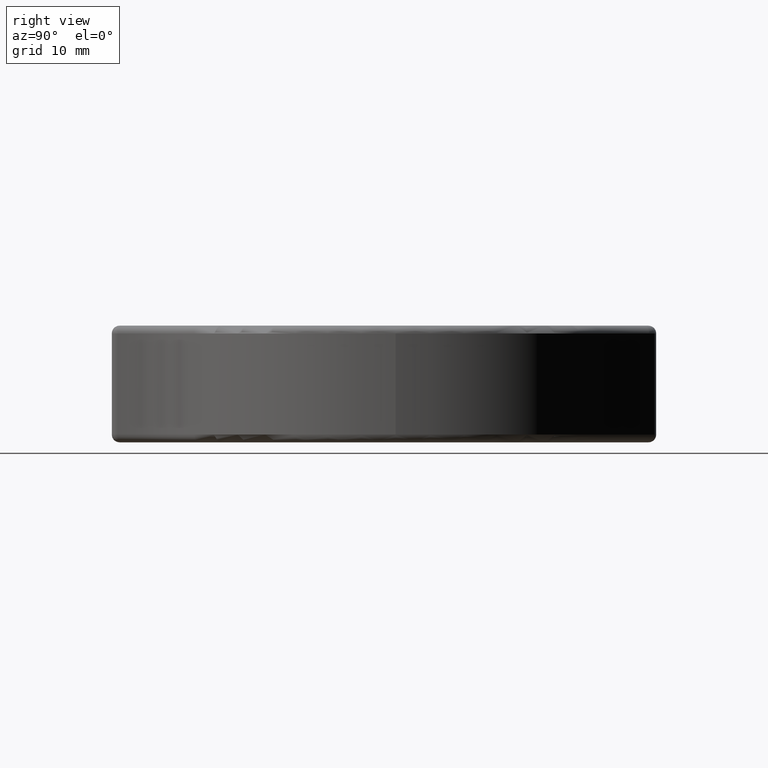
[diagram: clean part render]
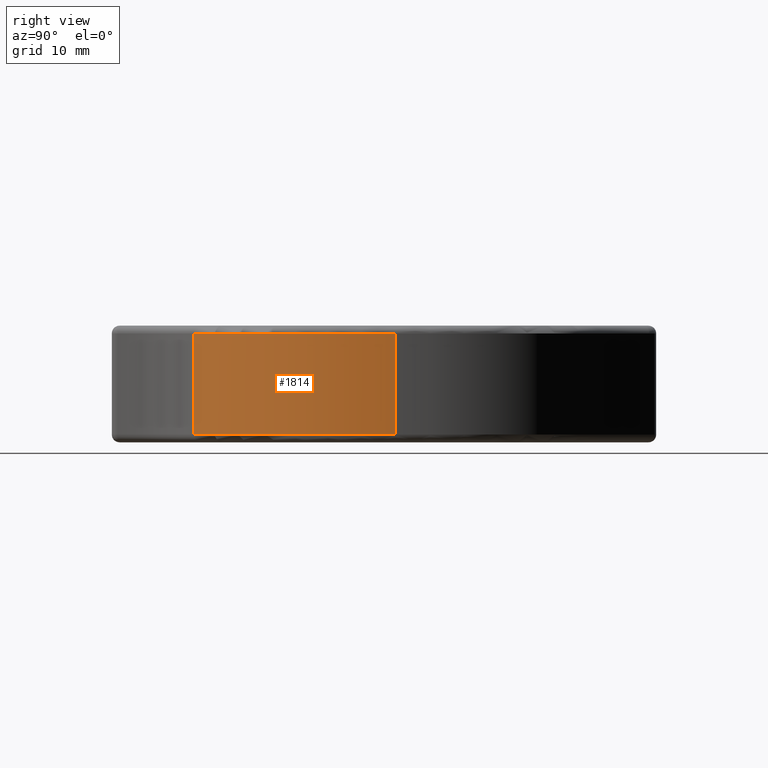
[diagram: same view with one face highlighted and labeled with its STEP entity id]
A machine part, right view. The second image highlights one B-rep face of the part: STEP entity #1814.
In plain terms, the highlighted cylindrical surface (partial cylindrical patch) has radius 30.5 mm, axis along (-0, 0, 1).
Its self-contained STEP definition (entity closure, byte-faithful):
#89 = EDGE_CURVE ( 'NONE', #1176, #509, #280, .T. ) ;
#91 = VERTEX_POINT ( 'NONE', #1219 ) ;
#104 = EDGE_CURVE ( 'NONE', #91, #841, #505, .T. ) ;
#108 = FACE_OUTER_BOUND ( 'NONE', #1388, .T. ) ;
#200 = VECTOR ( 'NONE', #205, 1000.000000000000000 ) ;
#205 = DIRECTION ( 'NONE',  ( -0.0000000000000000000, 0.0000000000000000000, 1.000000000000000000 ) ) ;
#254 = CARTESIAN_POINT ( 'NONE',  ( 0.0000000000000000000, 0.0000000000000000000, -1.000000000000000900 ) ) ;
#280 = LINE ( 'NONE', #2080, #200 ) ;
#358 = CARTESIAN_POINT ( 'NONE',  ( 30.50000000000000000, -1.693090112553364000E-014, -1.000000000000000900 ) ) ;
#370 = DIRECTION ( 'NONE',  ( 1.000000000000000000, -5.551115123125783700E-016, 0.0000000000000000000 ) ) ;
#380 = AXIS2_PLACEMENT_3D ( 'NONE', #1657, #1332, #2177 ) ;
#411 = DIRECTION ( 'NONE',  ( -1.000000000000000000, 5.551115123125783700E-016, 0.0000000000000000000 ) ) ;
#429 = EDGE_CURVE ( 'NONE', #91, #1176, #735, .T. ) ;
#434 = DIRECTION ( 'NONE',  ( 0.0000000000000000000, 0.0000000000000000000, -1.000000000000000000 ) ) ;
#450 = CIRCLE ( 'NONE', #1039, 30.50000000000000000 ) ;
#472 = ORIENTED_EDGE ( 'NONE', *, *, #429, .T. ) ;
#505 = LINE ( 'NONE', #1554, #725 ) ;
#509 = VERTEX_POINT ( 'NONE', #358 ) ;
#528 = CYLINDRICAL_SURFACE ( 'NONE', #1648, 30.50000000000000000 ) ;
#672 = CARTESIAN_POINT ( 'NONE',  ( 30.50000000000000000, -1.693090112553364000E-014, -13.99999999999999800 ) ) ;
#725 = VECTOR ( 'NONE', #1887, 1000.000000000000000 ) ;
#735 = CIRCLE ( 'NONE', #380, 30.50000000000000000 ) ;
#841 = VERTEX_POINT ( 'NONE', #2154 ) ;
#1021 = ORIENTED_EDGE ( 'NONE', *, *, #1363, .T. ) ;
#1030 = DIRECTION ( 'NONE',  ( -0.0000000000000000000, 0.0000000000000000000, 1.000000000000000000 ) ) ;
#1039 = AXIS2_PLACEMENT_3D ( 'NONE', #254, #434, #411 ) ;
#1176 = VERTEX_POINT ( 'NONE', #672 ) ;
#1219 = CARTESIAN_POINT ( 'NONE',  ( 15.97298249955993100, -25.98295268187880700, -13.99999999999999800 ) ) ;
#1332 = DIRECTION ( 'NONE',  ( -0.0000000000000000000, -0.0000000000000000000, 1.000000000000000000 ) ) ;
#1363 = EDGE_CURVE ( 'NONE', #509, #841, #450, .T. ) ;
#1366 = CARTESIAN_POINT ( 'NONE',  ( 0.0000000000000000000, 0.0000000000000000000, -15.00000000000000000 ) ) ;
#1388 = EDGE_LOOP ( 'NONE', ( #472, #1594, #1021, #1629 ) ) ;
#1554 = CARTESIAN_POINT ( 'NONE',  ( 15.97298249955993100, -25.98295268187880700, -15.00000000000000000 ) ) ;
#1594 = ORIENTED_EDGE ( 'NONE', *, *, #89, .T. ) ;
#1629 = ORIENTED_EDGE ( 'NONE', *, *, #104, .F. ) ;
#1648 = AXIS2_PLACEMENT_3D ( 'NONE', #1366, #1030, #370 ) ;
#1657 = CARTESIAN_POINT ( 'NONE',  ( 0.0000000000000000000, 0.0000000000000000000, -13.99999999999999800 ) ) ;
#1814 = ADVANCED_FACE ( 'NONE', ( #108 ), #528, .T. ) ;
#1887 = DIRECTION ( 'NONE',  ( -0.0000000000000000000, 0.0000000000000000000, 1.000000000000000000 ) ) ;
#2080 = CARTESIAN_POINT ( 'NONE',  ( 30.50000000000000000, -1.693090112553364000E-014, -15.00000000000000000 ) ) ;
#2154 = CARTESIAN_POINT ( 'NONE',  ( 15.97298249955993100, -25.98295268187880700, -1.000000000000000900 ) ) ;
#2177 = DIRECTION ( 'NONE',  ( -1.000000000000000000, 2.331468351712829100E-015, 0.0000000000000000000 ) ) ;